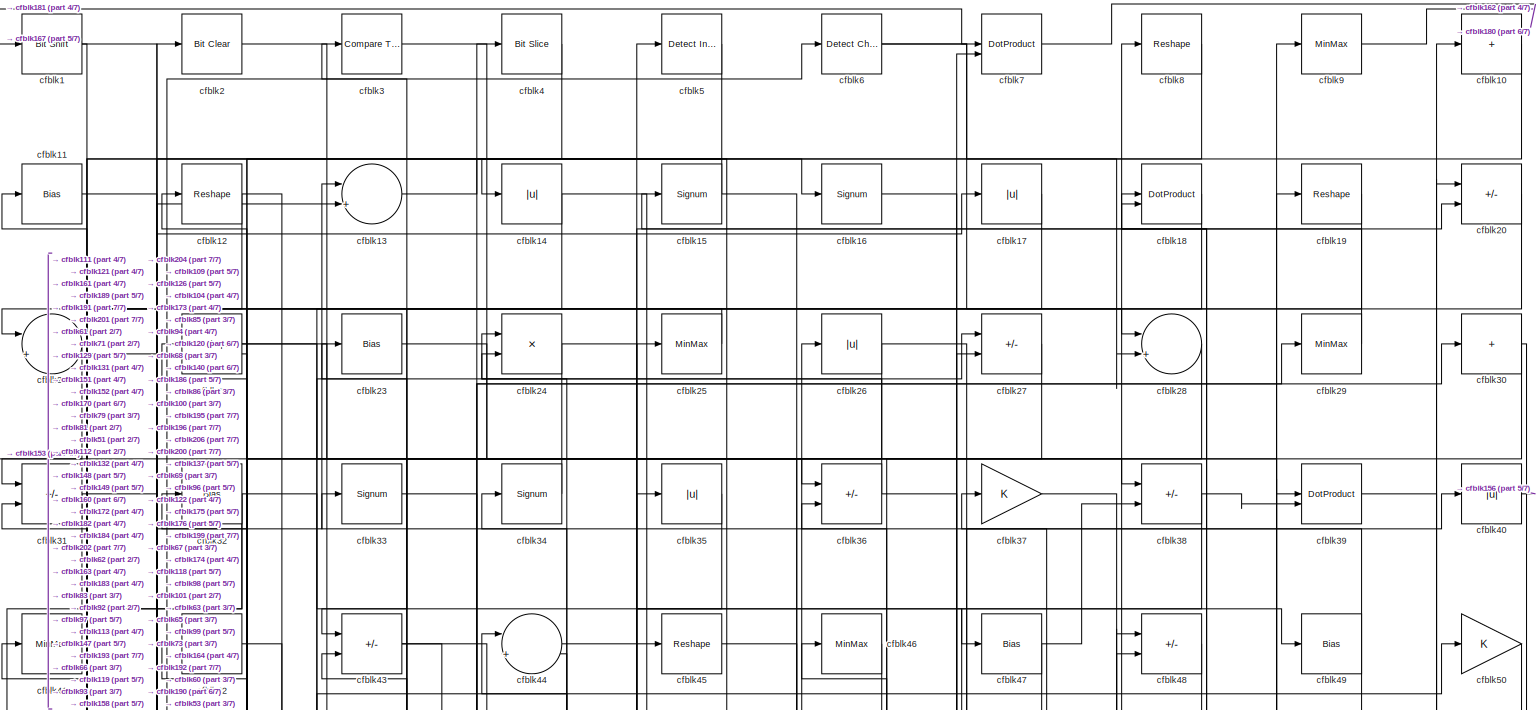
[diagram: root canvas - part 1/7, full width, top band]
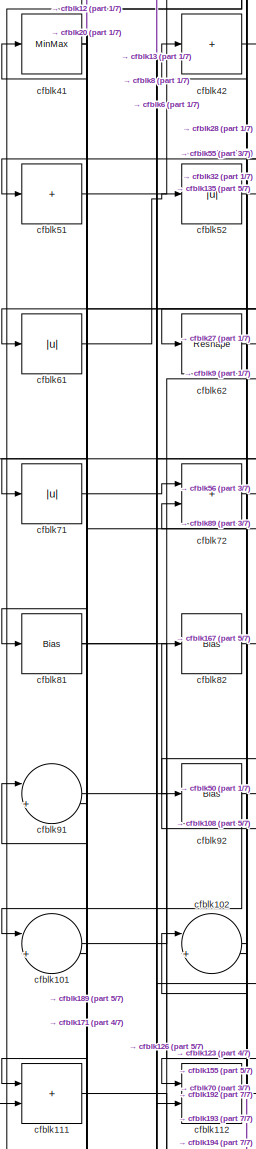
[diagram: root canvas - part 2/7, middle left region]
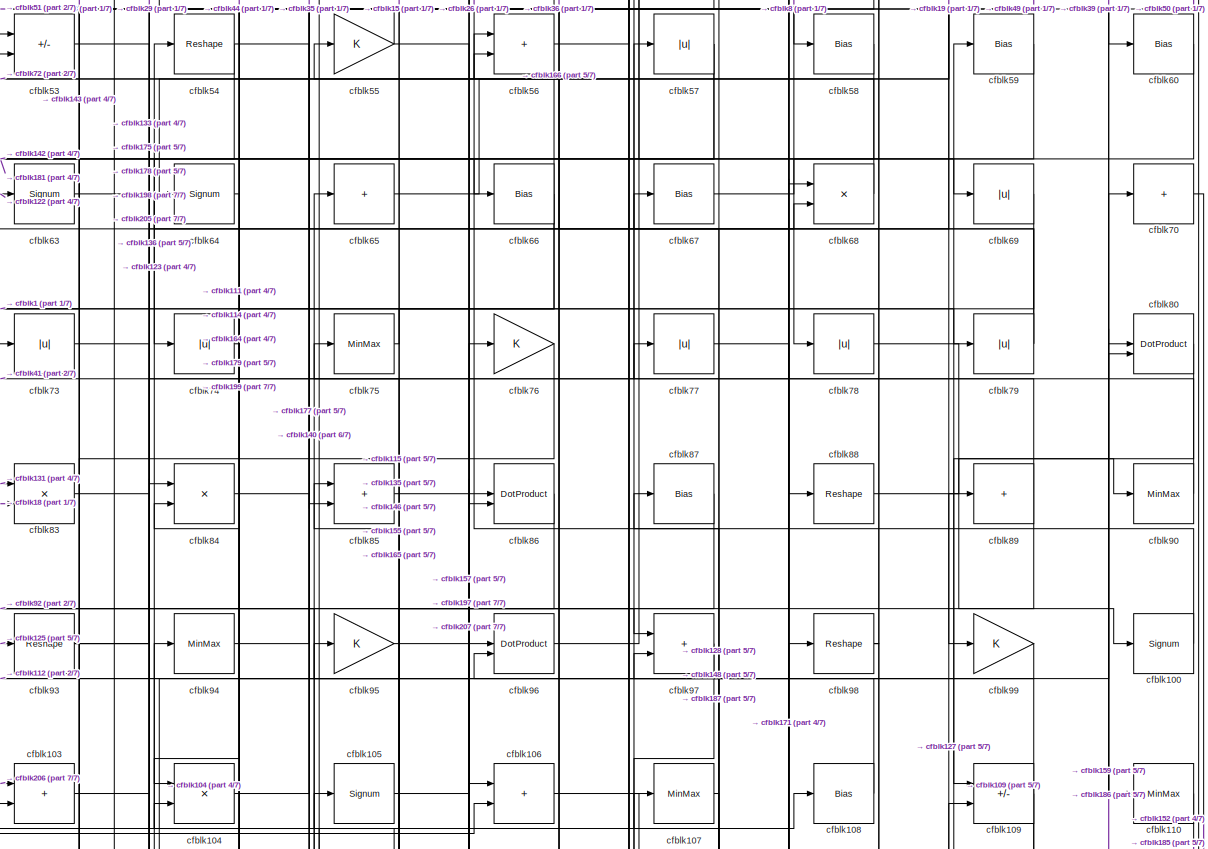
[diagram: root canvas - part 3/7, full width, middle band]
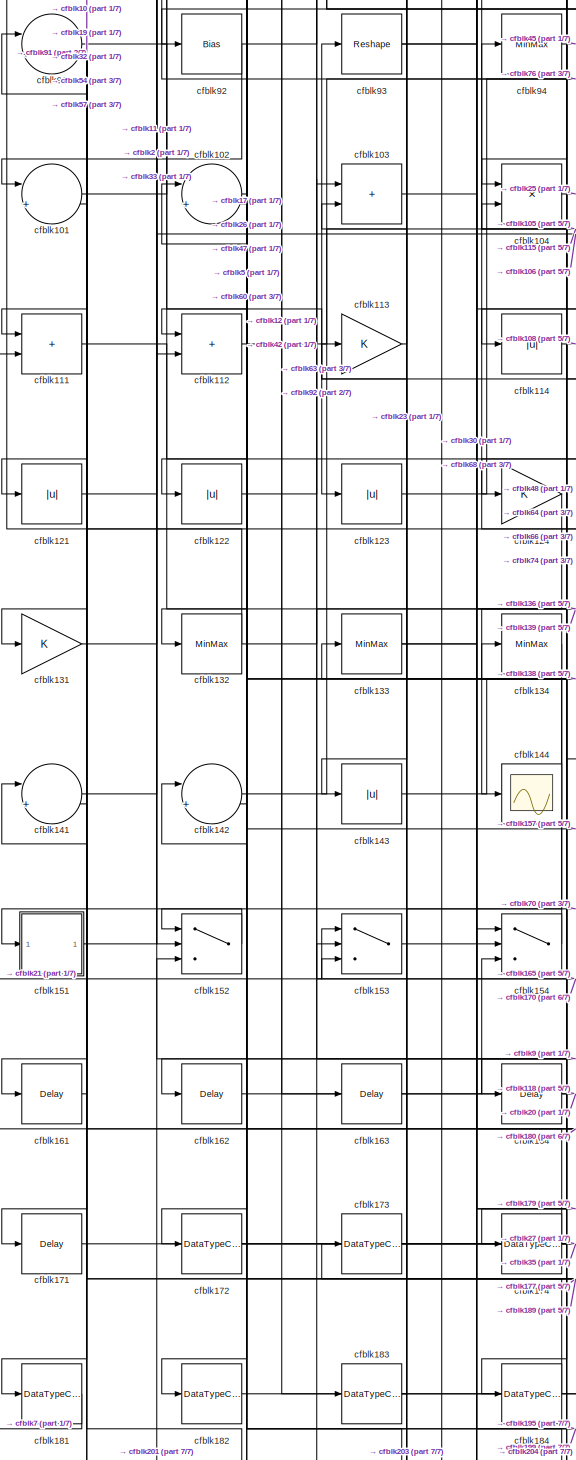
[diagram: root canvas - part 4/7, bottom left region]
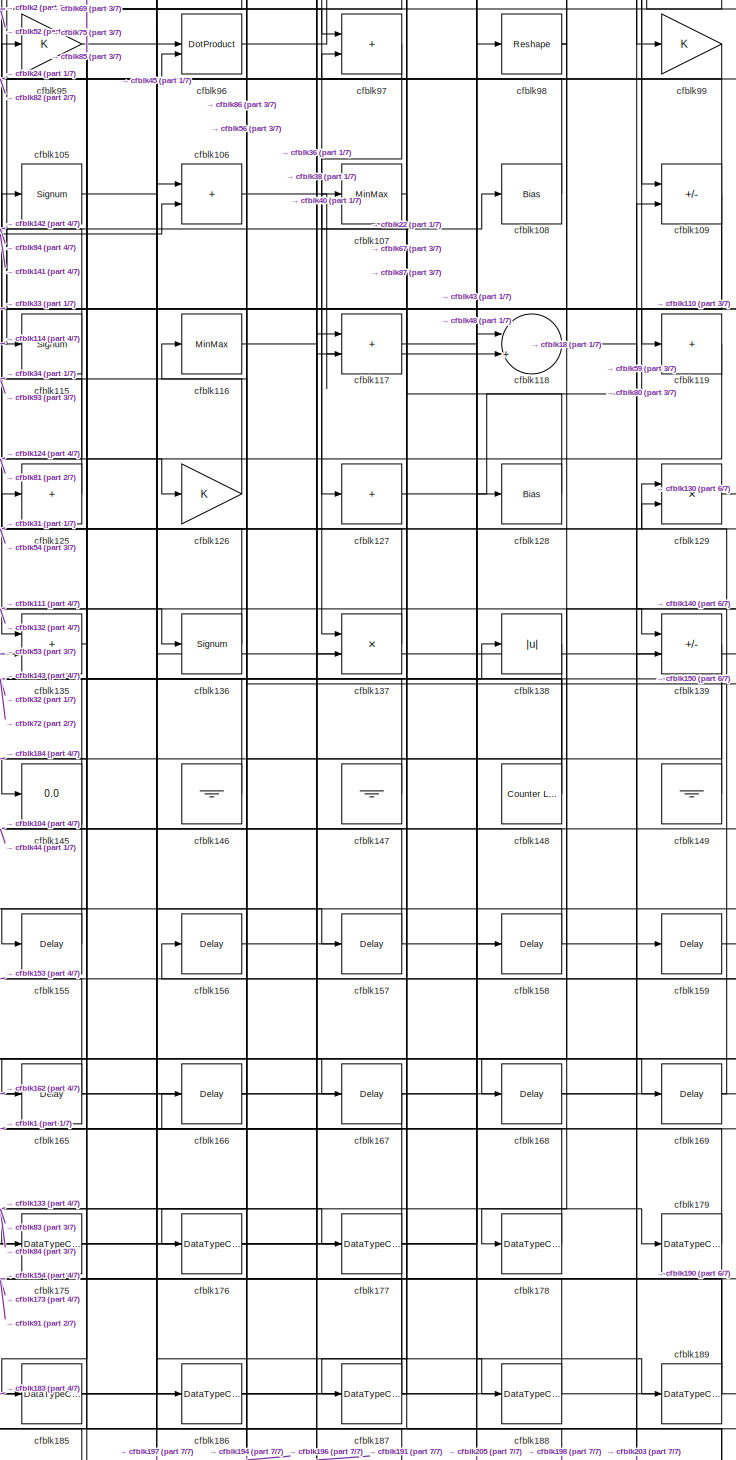
[diagram: root canvas - part 5/7, bottom center region]
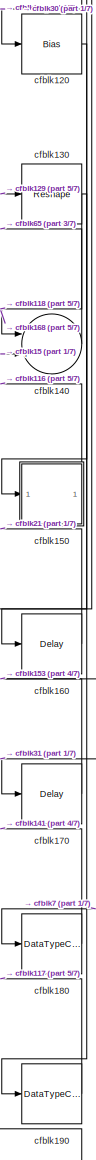
[diagram: root canvas - part 6/7, bottom right region]
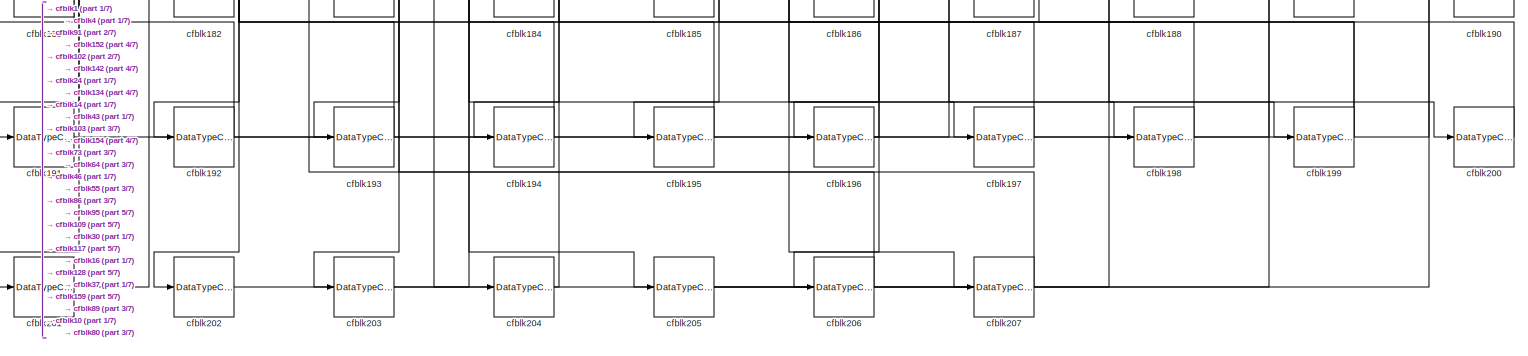
[diagram: root canvas - part 7/7, full width, bottom band]
MODEL slx_f09757773383
KIND model
CONFIG AbsTol = auto
CONFIG EnableMultiTasking = off
CONFIG FixedStep = auto
CONFIG MaxStep = auto
CONFIG MinStep = auto
CONFIG RelTol = 1e-3
CONFIG SampleTimeConstraint = Unconstrained
CONFIG SolverName = VariableStepAuto
CONFIG StartTime = 0.0
CONFIG StopTime = 10.0
BLOCK [Reference] cfblk1  REF=hdlsllib/Logic and Bit
Operations/Bit Shift
  SourceBlock = hdlsllib/Logic and Bit\nOperations/Bit Shift
  SourceType = Bit Shift
BLOCK [Sum] cfblk10
  IconShape = rectangular
  Inputs = +
BLOCK [Signum] cfblk100
BLOCK [Sum] cfblk101
  Inputs = |++
BLOCK [Sum] cfblk102
  Inputs = |++
BLOCK [Sum] cfblk103
  IconShape = rectangular
BLOCK [Product] cfblk104
  Inputs = */
  RndMeth = Zero
  SaturateOnIntegerOverflow = on
BLOCK [Signum] cfblk105
BLOCK [Sum] cfblk106
  IconShape = rectangular
BLOCK [MinMax] cfblk107
BLOCK [Bias] cfblk108
  Bias = 0.0
  SaturateOnIntegerOverflow = off
BLOCK [Sum] cfblk109
  IconShape = rectangular
  Inputs = +-
BLOCK [Bias] cfblk11
  Bias = 0.0
  SaturateOnIntegerOverflow = off
BLOCK [MinMax] cfblk110
BLOCK [Sum] cfblk111
  IconShape = rectangular
BLOCK [Sum] cfblk112
  IconShape = rectangular
BLOCK [Gain] cfblk113
BLOCK [Abs] cfblk114
  SaturateOnIntegerOverflow = off
BLOCK [Signum] cfblk115
BLOCK [MinMax] cfblk116
BLOCK [Sum] cfblk117
  IconShape = rectangular
BLOCK [Sum] cfblk118
  Inputs = |++
BLOCK [Sum] cfblk119
  IconShape = rectangular
  Inputs = +
BLOCK [Reshape] cfblk12
BLOCK [Bias] cfblk120
  Bias = 0.0
  SaturateOnIntegerOverflow = off
BLOCK [Abs] cfblk121
  SaturateOnIntegerOverflow = off
BLOCK [Abs] cfblk122
  SaturateOnIntegerOverflow = off
BLOCK [Abs] cfblk123
  SaturateOnIntegerOverflow = off
BLOCK [Gain] cfblk124
BLOCK [Sum] cfblk125
  IconShape = rectangular
  Inputs = +
BLOCK [Gain] cfblk126
BLOCK [Sum] cfblk127
  IconShape = rectangular
  Inputs = +
BLOCK [Bias] cfblk128
  Bias = 0.0
  SaturateOnIntegerOverflow = off
BLOCK [Product] cfblk129
  Inputs = */
  RndMeth = Zero
  SaturateOnIntegerOverflow = on
BLOCK [Sum] cfblk13
  Inputs = |++
BLOCK [Reshape] cfblk130
BLOCK [Gain] cfblk131
BLOCK [MinMax] cfblk132
BLOCK [MinMax] cfblk133
BLOCK [MinMax] cfblk134
BLOCK [Sum] cfblk135
  IconShape = rectangular
BLOCK [Signum] cfblk136
BLOCK [Product] cfblk137
  Inputs = */
  RndMeth = Zero
  SaturateOnIntegerOverflow = on
BLOCK [Abs] cfblk138
  SaturateOnIntegerOverflow = off
BLOCK [Sum] cfblk139
  IconShape = rectangular
  Inputs = +-
BLOCK [Abs] cfblk14
  SaturateOnIntegerOverflow = off
BLOCK [Sum] cfblk140
  Inputs = |++
BLOCK [Sum] cfblk141
  Inputs = |++
BLOCK [Sum] cfblk142
  Inputs = |++
BLOCK [Abs] cfblk143
  SaturateOnIntegerOverflow = off
BLOCK [Scope] cfblk144
  Floating = off
  NumInputPorts = 1
  ScopeSpecificationString = Simulink.scopes.TimeScopeBlockCfg('CurrentConfiguration', extmgr.ConfigurationSet(extmgr.Configuration('Core','General UI',true),extmgr.Configuration('Core','Source UI',true),extmgr.Configuration('Sources','WiredSimulink',true,'DataLoggingVariableName','ScopeData2','DataLoggingSaveFormat','Array','DataLoggingLimitDataPoints',true,'DataLoggingDecimation','1'),extmgr.Configuration('Visuals','Time Do...<+868ch>
BLOCK [Display] cfblk145
  Decimation = 1
BLOCK [Ground] cfblk146
BLOCK [Ground] cfblk147
BLOCK [Reference] cfblk148  REF=hdlsllib/Sources/Counter
Limited
  SourceBlock = hdlsllib/Sources/Counter\nLimited
  SourceType = Counter Limited
BLOCK [Ground] cfblk149
BLOCK [Signum] cfblk15
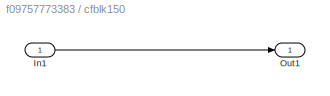
BLOCK [SubSystem] cfblk150
  LibrarySourceBlock = hdlsllib/Ports &\nSubsystems/Subsystem
BLOCK [Inport] cfblk150/In1
BLOCK [Outport] cfblk150/Out1
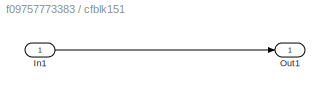
BLOCK [SubSystem] cfblk151
  LibrarySourceBlock = hdlsllib/Ports &\nSubsystems/Subsystem
BLOCK [Inport] cfblk151/In1
BLOCK [Outport] cfblk151/Out1
BLOCK [Switch] cfblk152
  InputSameDT = off
  SaturateOnIntegerOverflow = off
BLOCK [Switch] cfblk153
  InputSameDT = off
  SaturateOnIntegerOverflow = off
BLOCK [Switch] cfblk154
  InputSameDT = off
  SaturateOnIntegerOverflow = off
BLOCK [Delay] cfblk155
  InputPortMap = u0
  SampleTime = 1
BLOCK [Delay] cfblk156
  InputPortMap = u0
  SampleTime = 1
BLOCK [Delay] cfblk157
  InputPortMap = u0
  SampleTime = 1
BLOCK [Delay] cfblk158
  InputPortMap = u0
  SampleTime = 1
BLOCK [Delay] cfblk159
  InputPortMap = u0
  SampleTime = 1
BLOCK [Signum] cfblk16
BLOCK [Delay] cfblk160
  InputPortMap = u0
  SampleTime = 1
BLOCK [Delay] cfblk161
  InputPortMap = u0
  SampleTime = 1
BLOCK [Delay] cfblk162
  InputPortMap = u0
  SampleTime = 1
BLOCK [Delay] cfblk163
  InputPortMap = u0
  SampleTime = 1
BLOCK [Delay] cfblk164
  InputPortMap = u0
  SampleTime = 1
BLOCK [Delay] cfblk165
  InputPortMap = u0
  SampleTime = 1
BLOCK [Delay] cfblk166
  InputPortMap = u0
  SampleTime = 1
BLOCK [Delay] cfblk167
  InputPortMap = u0
  SampleTime = 1
BLOCK [Delay] cfblk168
  InputPortMap = u0
  SampleTime = 1
BLOCK [Delay] cfblk169
  InputPortMap = u0
  SampleTime = 1
BLOCK [Abs] cfblk17
  SaturateOnIntegerOverflow = off
BLOCK [Delay] cfblk170
  InputPortMap = u0
  SampleTime = 1
BLOCK [Delay] cfblk171
  InputPortMap = u0
  SampleTime = 1
BLOCK [DataTypeConversion] cfblk172
  RndMeth = Floor
  SaturateOnIntegerOverflow = off
BLOCK [DataTypeConversion] cfblk173
  OutDataTypeStr = uint8
  RndMeth = Floor
  SaturateOnIntegerOverflow = off
BLOCK [DataTypeConversion] cfblk174
  OutDataTypeStr = uint8
  RndMeth = Floor
  SaturateOnIntegerOverflow = off
BLOCK [DataTypeConversion] cfblk175
  OutDataTypeStr = uint8
  RndMeth = Floor
  SaturateOnIntegerOverflow = off
BLOCK [DataTypeConversion] cfblk176
  OutDataTypeStr = uint8
  RndMeth = Floor
  SaturateOnIntegerOverflow = off
BLOCK [DataTypeConversion] cfblk177
  RndMeth = Floor
  SaturateOnIntegerOverflow = off
BLOCK [DataTypeConversion] cfblk178
  OutDataTypeStr = uint8
  RndMeth = Floor
  SaturateOnIntegerOverflow = off
BLOCK [DataTypeConversion] cfblk179
  OutDataTypeStr = uint8
  RndMeth = Floor
  SaturateOnIntegerOverflow = off
BLOCK [DotProduct] cfblk18
  OutDataTypeStr = Inherit: Inherit via internal rule
BLOCK [DataTypeConversion] cfblk180
  OutDataTypeStr = uint8
  RndMeth = Floor
  SaturateOnIntegerOverflow = off
BLOCK [DataTypeConversion] cfblk181
  OutDataTypeStr = uint8
  RndMeth = Floor
  SaturateOnIntegerOverflow = off
BLOCK [DataTypeConversion] cfblk182
  OutDataTypeStr = uint8
  RndMeth = Floor
  SaturateOnIntegerOverflow = off
BLOCK [DataTypeConversion] cfblk183
  RndMeth = Floor
  SaturateOnIntegerOverflow = off
BLOCK [DataTypeConversion] cfblk184
  OutDataTypeStr = uint8
  RndMeth = Floor
  SaturateOnIntegerOverflow = off
BLOCK [DataTypeConversion] cfblk185
  OutDataTypeStr = uint8
  RndMeth = Floor
  SaturateOnIntegerOverflow = off
BLOCK [DataTypeConversion] cfblk186
  OutDataTypeStr = uint8
  RndMeth = Floor
  SaturateOnIntegerOverflow = off
BLOCK [DataTypeConversion] cfblk187
  RndMeth = Floor
  SaturateOnIntegerOverflow = off
BLOCK [DataTypeConversion] cfblk188
  OutDataTypeStr = uint8
  RndMeth = Floor
  SaturateOnIntegerOverflow = off
BLOCK [DataTypeConversion] cfblk189
  RndMeth = Floor
  SaturateOnIntegerOverflow = off
BLOCK [Reshape] cfblk19
BLOCK [DataTypeConversion] cfblk190
  OutDataTypeStr = uint8
  RndMeth = Floor
  SaturateOnIntegerOverflow = off
BLOCK [DataTypeConversion] cfblk191
  OutDataTypeStr = uint8
  RndMeth = Floor
  SaturateOnIntegerOverflow = off
BLOCK [DataTypeConversion] cfblk192
  RndMeth = Floor
  SaturateOnIntegerOverflow = off
BLOCK [DataTypeConversion] cfblk193
  OutDataTypeStr = uint8
  RndMeth = Floor
  SaturateOnIntegerOverflow = off
BLOCK [DataTypeConversion] cfblk194
  OutDataTypeStr = uint8
  RndMeth = Floor
  SaturateOnIntegerOverflow = off
BLOCK [DataTypeConversion] cfblk195
  OutDataTypeStr = uint8
  RndMeth = Floor
  SaturateOnIntegerOverflow = off
BLOCK [DataTypeConversion] cfblk196
  OutDataTypeStr = uint8
  RndMeth = Floor
  SaturateOnIntegerOverflow = off
BLOCK [DataTypeConversion] cfblk197
  RndMeth = Floor
  SaturateOnIntegerOverflow = off
BLOCK [DataTypeConversion] cfblk198
  OutDataTypeStr = uint8
  RndMeth = Floor
  SaturateOnIntegerOverflow = off
BLOCK [DataTypeConversion] cfblk199
  RndMeth = Floor
  SaturateOnIntegerOverflow = off
BLOCK [Reference] cfblk2  REF=simulink/Logic and Bit
Operations/Bit Clear
  LibrarySourceBlock = hdlsllib/Logic and Bit\nOperations/Bit Clear
  SourceBlock = simulink/Logic and Bit\nOperations/Bit Clear
  SourceType = Bit Clear
BLOCK [Sum] cfblk20
  IconShape = rectangular
  Inputs = +-
BLOCK [DataTypeConversion] cfblk200
  OutDataTypeStr = uint8
  RndMeth = Floor
  SaturateOnIntegerOverflow = off
BLOCK [DataTypeConversion] cfblk201
  OutDataTypeStr = uint8
  RndMeth = Floor
  SaturateOnIntegerOverflow = off
BLOCK [DataTypeConversion] cfblk202
  OutDataTypeStr = uint8
  RndMeth = Floor
  SaturateOnIntegerOverflow = off
BLOCK [DataTypeConversion] cfblk203
  OutDataTypeStr = uint8
  RndMeth = Floor
  SaturateOnIntegerOverflow = off
BLOCK [DataTypeConversion] cfblk204
  OutDataTypeStr = uint8
  RndMeth = Floor
  SaturateOnIntegerOverflow = off
BLOCK [DataTypeConversion] cfblk205
  RndMeth = Floor
  SaturateOnIntegerOverflow = off
BLOCK [DataTypeConversion] cfblk206
  OutDataTypeStr = uint8
  RndMeth = Floor
  SaturateOnIntegerOverflow = off
BLOCK [DataTypeConversion] cfblk207
  OutDataTypeStr = uint8
  RndMeth = Floor
  SaturateOnIntegerOverflow = off
BLOCK [Sum] cfblk21
  Inputs = |++
BLOCK [Reshape] cfblk22
BLOCK [Bias] cfblk23
  Bias = 0.0
  SaturateOnIntegerOverflow = off
BLOCK [Product] cfblk24
  Inputs = */
  RndMeth = Zero
  SaturateOnIntegerOverflow = on
BLOCK [MinMax] cfblk25
BLOCK [Abs] cfblk26
  SaturateOnIntegerOverflow = off
BLOCK [Sum] cfblk27
  IconShape = rectangular
  Inputs = +-
BLOCK [Sum] cfblk28
  Inputs = |++
BLOCK [MinMax] cfblk29
BLOCK [Reference] cfblk3  REF=hdlsllib/Logic and Bit
Operations/Compare
To Constant
  SourceBlock = hdlsllib/Logic and Bit\nOperations/Compare\nTo Constant
  SourceType = Compare To Constant
BLOCK [Sum] cfblk30
  IconShape = rectangular
  Inputs = +
BLOCK [Sum] cfblk31
  IconShape = rectangular
  Inputs = +-
BLOCK [Bias] cfblk32
  Bias = 0.0
  SaturateOnIntegerOverflow = off
BLOCK [Signum] cfblk33
BLOCK [Signum] cfblk34
BLOCK [Abs] cfblk35
  SaturateOnIntegerOverflow = off
BLOCK [Sum] cfblk36
  IconShape = rectangular
  Inputs = +-
BLOCK [Gain] cfblk37
BLOCK [Sum] cfblk38
  IconShape = rectangular
  Inputs = +-
BLOCK [DotProduct] cfblk39
  OutDataTypeStr = Inherit: Inherit via internal rule
BLOCK [Reference] cfblk4  REF=hdlsllib/Logic and Bit
Operations/Bit Slice
  SourceBlock = hdlsllib/Logic and Bit\nOperations/Bit Slice
  SourceType = Bit Slice
BLOCK [Abs] cfblk40
  SaturateOnIntegerOverflow = off
BLOCK [MinMax] cfblk41
BLOCK [Sum] cfblk42
  IconShape = rectangular
  Inputs = +
BLOCK [Sum] cfblk43
  IconShape = rectangular
  Inputs = +-
BLOCK [Sum] cfblk44
  Inputs = |++
BLOCK [Reshape] cfblk45
BLOCK [MinMax] cfblk46
BLOCK [Bias] cfblk47
  Bias = 0.0
  SaturateOnIntegerOverflow = off
BLOCK [Sum] cfblk48
  IconShape = rectangular
  Inputs = +-
BLOCK [Bias] cfblk49
  Bias = 0.0
  SaturateOnIntegerOverflow = off
BLOCK [Reference] cfblk5  REF=simulink/Logic and Bit
Operations/Detect
Increase
  LibrarySourceBlock = hdlsllib/Logic and Bit\nOperations/Detect\nIncrease
  SourceBlock = simulink/Logic and Bit\nOperations/Detect\nIncrease
  SourceType = Detect Increase
BLOCK [Gain] cfblk50
BLOCK [Sum] cfblk51
  IconShape = rectangular
  Inputs = +
BLOCK [Abs] cfblk52
  SaturateOnIntegerOverflow = off
BLOCK [Sum] cfblk53
  IconShape = rectangular
  Inputs = +-
BLOCK [Reshape] cfblk54
BLOCK [Gain] cfblk55
BLOCK [Sum] cfblk56
  IconShape = rectangular
BLOCK [Abs] cfblk57
  SaturateOnIntegerOverflow = off
BLOCK [Bias] cfblk58
  Bias = 0.0
  SaturateOnIntegerOverflow = off
BLOCK [Bias] cfblk59
  Bias = 0.0
  SaturateOnIntegerOverflow = off
BLOCK [Reference] cfblk6  REF=simulink/Logic and Bit
Operations/Detect
Change
  LibrarySourceBlock = hdlsllib/Logic and Bit\nOperations/Detect\nChange
  SourceBlock = simulink/Logic and Bit\nOperations/Detect\nChange
  SourceType = Detect Change
BLOCK [Bias] cfblk60
  Bias = 0.0
  SaturateOnIntegerOverflow = off
BLOCK [Abs] cfblk61
  SaturateOnIntegerOverflow = off
BLOCK [Reshape] cfblk62
BLOCK [Signum] cfblk63
BLOCK [Signum] cfblk64
BLOCK [Sum] cfblk65
  IconShape = rectangular
  Inputs = +
BLOCK [Bias] cfblk66
  Bias = 0.0
  SaturateOnIntegerOverflow = off
BLOCK [Bias] cfblk67
  Bias = 0.0
  SaturateOnIntegerOverflow = off
BLOCK [Product] cfblk68
  Inputs = */
  RndMeth = Zero
  SaturateOnIntegerOverflow = on
BLOCK [Abs] cfblk69
  SaturateOnIntegerOverflow = off
BLOCK [DotProduct] cfblk7
  OutDataTypeStr = Inherit: Inherit via internal rule
BLOCK [Sum] cfblk70
  IconShape = rectangular
  Inputs = +
BLOCK [Abs] cfblk71
  SaturateOnIntegerOverflow = off
BLOCK [Sum] cfblk72
  IconShape = rectangular
BLOCK [Abs] cfblk73
  SaturateOnIntegerOverflow = off
BLOCK [Abs] cfblk74
  SaturateOnIntegerOverflow = off
BLOCK [MinMax] cfblk75
BLOCK [Gain] cfblk76
BLOCK [Abs] cfblk77
  SaturateOnIntegerOverflow = off
BLOCK [Abs] cfblk78
  SaturateOnIntegerOverflow = off
BLOCK [Abs] cfblk79
  SaturateOnIntegerOverflow = off
BLOCK [Reshape] cfblk8
BLOCK [DotProduct] cfblk80
  OutDataTypeStr = Inherit: Inherit via internal rule
BLOCK [Bias] cfblk81
  Bias = 0.0
  SaturateOnIntegerOverflow = off
BLOCK [Bias] cfblk82
  Bias = 0.0
  SaturateOnIntegerOverflow = off
BLOCK [Product] cfblk83
  Inputs = */
  RndMeth = Zero
  SaturateOnIntegerOverflow = on
BLOCK [Product] cfblk84
  Inputs = */
  RndMeth = Zero
  SaturateOnIntegerOverflow = on
BLOCK [Sum] cfblk85
  IconShape = rectangular
BLOCK [DotProduct] cfblk86
  OutDataTypeStr = Inherit: Inherit via internal rule
BLOCK [Bias] cfblk87
  Bias = 0.0
  SaturateOnIntegerOverflow = off
BLOCK [Reshape] cfblk88
BLOCK [Sum] cfblk89
  IconShape = rectangular
  Inputs = +
BLOCK [MinMax] cfblk9
BLOCK [MinMax] cfblk90
BLOCK [Sum] cfblk91
  Inputs = |++
BLOCK [Bias] cfblk92
  Bias = 0.0
  SaturateOnIntegerOverflow = off
BLOCK [Reshape] cfblk93
BLOCK [MinMax] cfblk94
BLOCK [Gain] cfblk95
BLOCK [DotProduct] cfblk96
  OutDataTypeStr = Inherit: Inherit via internal rule
BLOCK [Sum] cfblk97
  IconShape = rectangular
BLOCK [Reshape] cfblk98
BLOCK [Gain] cfblk99
LINE cfblk100:1 -> cfblk26:1
LINE cfblk101:1 -> cfblk9:1
LINE cfblk102:1 -> cfblk192:1
LINE cfblk103:1 -> cfblk205:1
LINE cfblk104:1 -> cfblk25:1
LINE cfblk105:1 -> cfblk188:1
LINE cfblk106:1 -> cfblk118:2
LINE cfblk107:1 -> cfblk187:1
LINE cfblk108:1 -> cfblk82:1
NET cfblk109:1 -> cfblk194:1, cfblk196:1, cfblk24:1
LINE cfblk10:1 -> cfblk121:1
LINE cfblk110:1 -> cfblk185:1
LINE cfblk111:1 -> cfblk139:1
LINE cfblk112:1 -> cfblk70:1
LINE cfblk113:1 -> cfblk23:1
LINE cfblk114:1 -> cfblk108:1
NET cfblk115:1 -> cfblk124:1, cfblk94:1
LINE cfblk116:1 -> cfblk169:1
LINE cfblk117:1 -> cfblk189:1
NET cfblk118:1 -> cfblk140:1, cfblk18:2
LINE cfblk119:1 -> cfblk145:1
LINE cfblk11:1 -> cfblk152:2
LINE cfblk120:1 -> cfblk160:1
LINE cfblk121:1 -> cfblk17:1
LINE cfblk122:1 -> cfblk63:1
LINE cfblk123:1 -> cfblk76:1
LINE cfblk124:1 -> cfblk144:1
LINE cfblk125:1 -> cfblk93:1
LINE cfblk126:1 -> cfblk34:1
LINE cfblk127:1 -> cfblk59:1
LINE cfblk128:1 -> cfblk87:1
LINE cfblk129:1 -> cfblk130:1
NET cfblk12:1 -> cfblk101:1, cfblk163:1
NET cfblk130:1 -> cfblk150:1, cfblk168:1
LINE cfblk131:1 -> cfblk2:1
NET cfblk132:1 -> cfblk11:1, cfblk136:1
NET cfblk133:1 -> cfblk179:1, cfblk68:2
LINE cfblk134:1 -> cfblk203:1
LINE cfblk135:1 -> cfblk85:1
LINE cfblk136:1 -> cfblk54:1
LINE cfblk137:1 -> cfblk125:1
LINE cfblk138:1 -> cfblk176:1
LINE cfblk139:1 -> cfblk184:1
LINE cfblk13:1 -> cfblk16:1
LINE cfblk140:1 -> cfblk65:1
LINE cfblk141:1 -> cfblk106:2
LINE cfblk142:1 -> cfblk105:1
LINE cfblk143:1 -> cfblk138:1
LINE cfblk146:1 -> cfblk75:1
LINE cfblk147:1 -> cfblk43:2
NET cfblk148:1 -> cfblk22:1, cfblk67:1
LINE cfblk149:1 -> cfblk32:1
NET cfblk14:1 -> cfblk120:1, cfblk193:1
LINE cfblk150/In1:1 -> cfblk150/Out1:1
LINE cfblk150:1 -> cfblk116:1
LINE cfblk151/In1:1 -> cfblk151/Out1:1
LINE cfblk151:1 -> cfblk33:1
LINE cfblk152:1 -> cfblk151:1
LINE cfblk153:1 -> cfblk30:1
LINE cfblk154:1 -> cfblk133:1
LINE cfblk155:1 -> cfblk72:2
LINE cfblk156:1 -> cfblk109:2
LINE cfblk157:1 -> cfblk104:2
LINE cfblk158:1 -> cfblk44:1
LINE cfblk159:1 -> cfblk80:1
NET cfblk15:1 -> cfblk140:2, cfblk14:1
LINE cfblk160:1 -> cfblk21:2
LINE cfblk161:1 -> cfblk141:2
LINE cfblk162:1 -> cfblk118:1
LINE cfblk163:1 -> cfblk154:3
LINE cfblk164:1 -> cfblk20:1
LINE cfblk165:1 -> cfblk153:2
LINE cfblk166:1 -> cfblk56:2
LINE cfblk167:1 -> cfblk1:1
LINE cfblk168:1 -> cfblk139:2
LINE cfblk169:1 -> cfblk129:2
LINE cfblk16:1 -> cfblk200:1
LINE cfblk170:1 -> cfblk153:3
LINE cfblk171:1 -> cfblk68:1
NET cfblk172:1 -> cfblk27:2, cfblk35:1
LINE cfblk173:1 -> cfblk5:1
LINE cfblk174:1 -> cfblk12:1
LINE cfblk175:1 -> cfblk48:1
LINE cfblk176:1 -> cfblk48:2
NET cfblk177:1 -> cfblk173:1, cfblk96:1
LINE cfblk178:1 -> cfblk84:1
LINE cfblk179:1 -> cfblk84:2
LINE cfblk17:1 -> cfblk132:1
LINE cfblk180:1 -> cfblk141:1
LINE cfblk181:1 -> cfblk7:1
LINE cfblk182:1 -> cfblk7:2
NET cfblk183:1 -> cfblk106:1, cfblk113:1
LINE cfblk184:1 -> cfblk42:1
LINE cfblk185:1 -> cfblk98:1
LINE cfblk186:1 -> cfblk110:1
NET cfblk187:1 -> cfblk166:1, cfblk53:2, cfblk97:2
LINE cfblk188:1 -> cfblk107:1
NET cfblk189:1 -> cfblk154:2, cfblk31:2, cfblk91:2
LINE cfblk18:1 -> cfblk83:2
LINE cfblk190:1 -> cfblk117:1
LINE cfblk191:1 -> cfblk117:2
NET cfblk192:1 -> cfblk10:1, cfblk91:1
LINE cfblk193:1 -> cfblk102:1
LINE cfblk194:1 -> cfblk102:2
LINE cfblk195:1 -> cfblk154:1
LINE cfblk196:1 -> cfblk46:1
NET cfblk197:1 -> cfblk86:1, cfblk89:1
LINE cfblk198:1 -> cfblk95:1
NET cfblk199:1 -> cfblk142:1, cfblk64:1
LINE cfblk19:1 -> cfblk161:1
NET cfblk1:1 -> cfblk191:1, cfblk79:1
LINE cfblk200:1 -> cfblk37:1
LINE cfblk201:1 -> cfblk152:3
LINE cfblk202:1 -> cfblk4:1
LINE cfblk203:1 -> cfblk159:1
LINE cfblk204:1 -> cfblk134:1
NET cfblk205:1 -> cfblk128:1, cfblk80:2
LINE cfblk206:1 -> cfblk103:1
LINE cfblk207:1 -> cfblk103:2
LINE cfblk20:1 -> cfblk71:1
LINE cfblk21:1 -> cfblk153:1
NET cfblk22:1 -> cfblk38:1, cfblk99:1
LINE cfblk23:1 -> cfblk36:1
NET cfblk24:1 -> cfblk202:1, cfblk49:1
LINE cfblk25:1 -> cfblk21:1
NET cfblk26:1 -> cfblk182:1, cfblk69:1
LINE cfblk27:1 -> cfblk43:1
LINE cfblk28:1 -> cfblk112:1
LINE cfblk29:1 -> cfblk62:1
LINE cfblk2:1 -> cfblk97:1
NET cfblk30:1 -> cfblk190:1, cfblk206:1
NET cfblk31:1 -> cfblk129:1, cfblk170:1
NET cfblk32:1 -> cfblk111:1, cfblk47:1, cfblk61:1
LINE cfblk33:1 -> cfblk119:1
LINE cfblk34:1 -> cfblk31:1
LINE cfblk35:1 -> cfblk85:2
NET cfblk36:1 -> cfblk137:2, cfblk24:2
LINE cfblk37:1 -> cfblk199:1
NET cfblk38:1 -> cfblk137:1, cfblk39:2
LINE cfblk39:1 -> cfblk60:1
LINE cfblk3:1 -> cfblk86:2
LINE cfblk40:1 -> cfblk156:1
NET cfblk41:1 -> cfblk101:2, cfblk81:1
LINE cfblk42:1 -> cfblk183:1
NET cfblk43:1 -> cfblk158:1, cfblk204:1
LINE cfblk44:1 -> cfblk20:2
LINE cfblk45:1 -> cfblk186:1
LINE cfblk46:1 -> cfblk195:1
NET cfblk47:1 -> cfblk122:1, cfblk38:2
LINE cfblk48:1 -> cfblk174:1
NET cfblk49:1 -> cfblk13:1, cfblk73:1
LINE cfblk4:1 -> cfblk201:1
LINE cfblk50:1 -> cfblk53:1
LINE cfblk51:1 -> cfblk6:1
LINE cfblk52:1 -> cfblk135:1
LINE cfblk53:1 -> cfblk135:2
NET cfblk54:1 -> cfblk181:1, cfblk66:1
NET cfblk55:1 -> cfblk207:1, cfblk51:1
LINE cfblk56:1 -> cfblk58:1
NET cfblk57:1 -> cfblk131:1, cfblk83:1
LINE cfblk58:1 -> cfblk74:1
LINE cfblk59:1 -> cfblk78:1
LINE cfblk5:1 -> cfblk172:1
LINE cfblk60:1 -> cfblk142:2
LINE cfblk61:1 -> cfblk52:1
LINE cfblk62:1 -> cfblk27:1
LINE cfblk63:1 -> cfblk39:1
LINE cfblk64:1 -> cfblk114:1
LINE cfblk65:1 -> cfblk19:1
NET cfblk66:1 -> cfblk111:2, cfblk164:1, cfblk3:1
LINE cfblk67:1 -> cfblk8:1
LINE cfblk68:1 -> cfblk15:1
LINE cfblk69:1 -> cfblk115:1
NET cfblk6:1 -> cfblk28:1, cfblk28:2
LINE cfblk70:1 -> cfblk152:1
LINE cfblk71:1 -> cfblk72:1
LINE cfblk72:1 -> cfblk56:1
LINE cfblk73:1 -> cfblk198:1
LINE cfblk74:1 -> cfblk104:1
LINE cfblk75:1 -> cfblk55:1
LINE cfblk76:1 -> cfblk143:1
LINE cfblk77:1 -> cfblk88:1
LINE cfblk78:1 -> cfblk100:1
NET cfblk79:1 -> cfblk36:2, cfblk44:2
LINE cfblk7:1 -> cfblk180:1
LINE cfblk80:1 -> cfblk109:1
NET cfblk81:1 -> cfblk126:1, cfblk13:2
LINE cfblk82:1 -> cfblk167:1
LINE cfblk83:1 -> cfblk175:1
LINE cfblk84:1 -> cfblk177:1
LINE cfblk85:1 -> cfblk157:1
LINE cfblk86:1 -> cfblk165:1
LINE cfblk87:1 -> cfblk155:1
LINE cfblk88:1 -> cfblk90:1
NET cfblk89:1 -> cfblk41:1, cfblk92:1
LINE cfblk8:1 -> cfblk112:2
LINE cfblk90:1 -> cfblk57:1
LINE cfblk91:1 -> cfblk123:1
NET cfblk92:1 -> cfblk171:1, cfblk50:1
NET cfblk93:1 -> cfblk29:1, cfblk77:1
LINE cfblk94:1 -> cfblk45:1
LINE cfblk95:1 -> cfblk197:1
LINE cfblk96:1 -> cfblk40:1
LINE cfblk97:1 -> cfblk127:1
NET cfblk98:1 -> cfblk178:1, cfblk18:1
LINE cfblk99:1 -> cfblk96:2
LINE cfblk9:1 -> cfblk162:1
note: NET lines group one-source signal fan-out (src -> all destinations, sorted); 1:1 wires keep LINE
